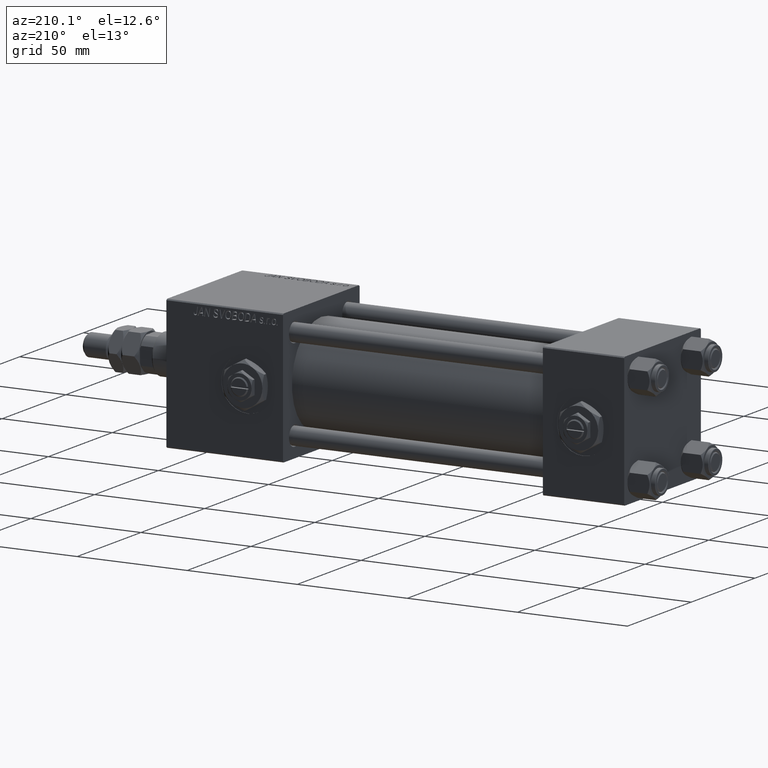
[diagram: clean part render]
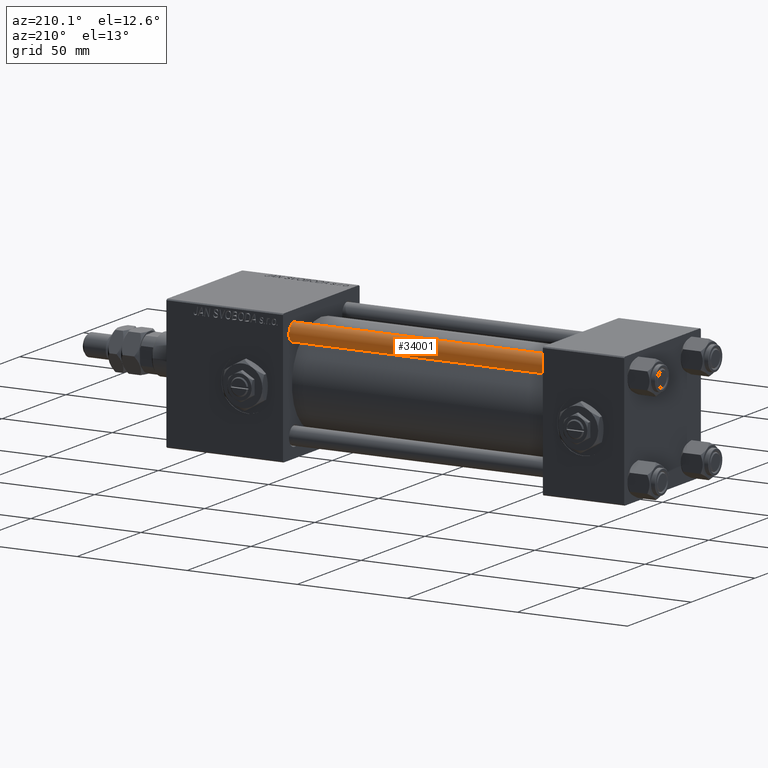
[diagram: same view with one face highlighted and labeled with its STEP entity id]
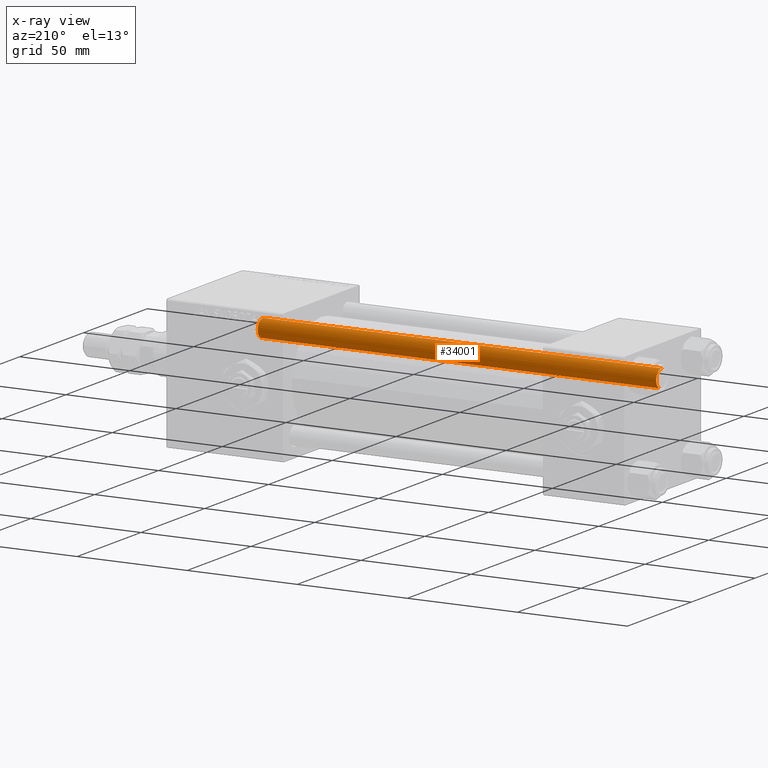
[diagram: x-ray of the same camera — body ghosted, the highlighted face saturated]
A machine part, auxiliary view. The second image highlights one B-rep face of the part: STEP entity #34001.
The next image is the same camera in x-ray: the body ghosted, the highlighted face saturated — about 0% of this face is hidden behind the body in this view.
In plain terms, the highlighted cylindrical surface (edge-blend (fillet) strip) has radius 4 mm, axis along (-1, 0, 0).
Its self-contained STEP definition (entity closure, byte-faithful):
#644 = AXIS2_PLACEMENT_3D ( 'NONE', #18534, #1657, #47669 ) ;
#1657 = DIRECTION ( 'NONE',  ( -0.000000000000000000, -0.000000000000000000, -1.000000000000000000 ) ) ;
#2438 = DIRECTION ( 'NONE',  ( -0.000000000000000000, -0.000000000000000000, -1.000000000000000000 ) ) ;
#2920 = EDGE_LOOP ( 'NONE', ( #27998, #35721, #41692, #16912 ) ) ;
#4100 = LINE ( 'NONE', #50658, #37517 ) ;
#7189 = DIRECTION ( 'NONE',  ( 0.000000000000000000, 0.000000000000000000, -1.000000000000000000 ) ) ;
#13838 = CARTESIAN_POINT ( 'NONE',  ( 0.000000000000000000, 0.000000000000000000, 0.4999999999999726885 ) ) ;
#15952 = CARTESIAN_POINT ( 'NONE',  ( -4.000000000000000000, 0.000000000000000000, 181.5000000000000284 ) ) ;
#16912 = ORIENTED_EDGE ( 'NONE', *, *, #46471, .F. ) ;
#18534 = CARTESIAN_POINT ( 'NONE',  ( 0.000000000000000000, 0.000000000000000000, 182.0000000000000000 ) ) ;
#19713 = DIRECTION ( 'NONE',  ( 1.000000000000000000, 0.000000000000000000, 0.000000000000000000 ) ) ;
#22713 = AXIS2_PLACEMENT_3D ( 'NONE', #13838, #46268, #46803 ) ;
#23755 = VERTEX_POINT ( 'NONE', #15952 ) ;
#26812 = AXIS2_PLACEMENT_3D ( 'NONE', #32534, #7189, #19713 ) ;
#27998 = ORIENTED_EDGE ( 'NONE', *, *, #36018, .T. ) ;
#29486 = CARTESIAN_POINT ( 'NONE',  ( 4.000000000000000000, 4.898587196589412829E-16, 0.4999999999999726885 ) ) ;
#29993 = CARTESIAN_POINT ( 'NONE',  ( -4.000000000000000000, 0.000000000000000000, 0.4999999999999726885 ) ) ;
#32534 = CARTESIAN_POINT ( 'NONE',  ( 0.000000000000000000, 0.000000000000000000, 181.5000000000000284 ) ) ;
#32923 = VECTOR ( 'NONE', #2438, 1000.000000000000000 ) ;
#33997 = CIRCLE ( 'NONE', #22713, 4.000000000000000000 ) ;
#34001 = ADVANCED_FACE ( 'NONE', ( #34620 ), #51485, .T. ) ;
#34620 = FACE_OUTER_BOUND ( 'NONE', #2920, .T. ) ;
#35703 = EDGE_CURVE ( 'NONE', #40337, #46805, #35929, .T. ) ;
#35721 = ORIENTED_EDGE ( 'NONE', *, *, #35703, .T. ) ;
#35929 = LINE ( 'NONE', #52256, #32923 ) ;
#36018 = EDGE_CURVE ( 'NONE', #23755, #40337, #36367, .T. ) ;
#36367 = CIRCLE ( 'NONE', #26812, 4.000000000000000000 ) ;
#36689 = VERTEX_POINT ( 'NONE', #29993 ) ;
#37517 = VECTOR ( 'NONE', #37865, 1000.000000000000000 ) ;
#37800 = CARTESIAN_POINT ( 'NONE',  ( 4.000000000000000000, 4.898587196589412829E-16, 181.5000000000000284 ) ) ;
#37865 = DIRECTION ( 'NONE',  ( -0.000000000000000000, -0.000000000000000000, -1.000000000000000000 ) ) ;
#40337 = VERTEX_POINT ( 'NONE', #37800 ) ;
#41692 = ORIENTED_EDGE ( 'NONE', *, *, #51565, .T. ) ;
#46268 = DIRECTION ( 'NONE',  ( -0.000000000000000000, -0.000000000000000000, 1.000000000000000000 ) ) ;
#46471 = EDGE_CURVE ( 'NONE', #23755, #36689, #4100, .T. ) ;
#46803 = DIRECTION ( 'NONE',  ( 1.000000000000000000, 0.000000000000000000, 0.000000000000000000 ) ) ;
#46805 = VERTEX_POINT ( 'NONE', #29486 ) ;
#47669 = DIRECTION ( 'NONE',  ( -1.000000000000000000, 0.000000000000000000, 0.000000000000000000 ) ) ;
#50658 = CARTESIAN_POINT ( 'NONE',  ( -4.000000000000000000, 0.000000000000000000, 182.0000000000000000 ) ) ;
#51485 = CYLINDRICAL_SURFACE ( 'NONE', #644, 4.000000000000000000 ) ;
#51565 = EDGE_CURVE ( 'NONE', #46805, #36689, #33997, .T. ) ;
#52256 = CARTESIAN_POINT ( 'NONE',  ( 4.000000000000000000, 4.898587196589412829E-16, 182.0000000000000000 ) ) ;